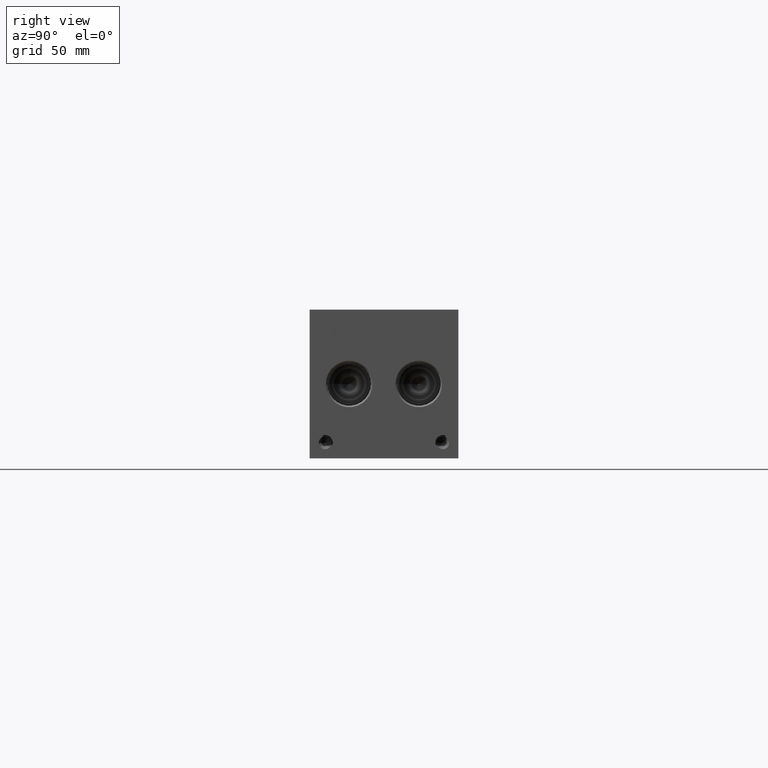
[diagram: clean part render]
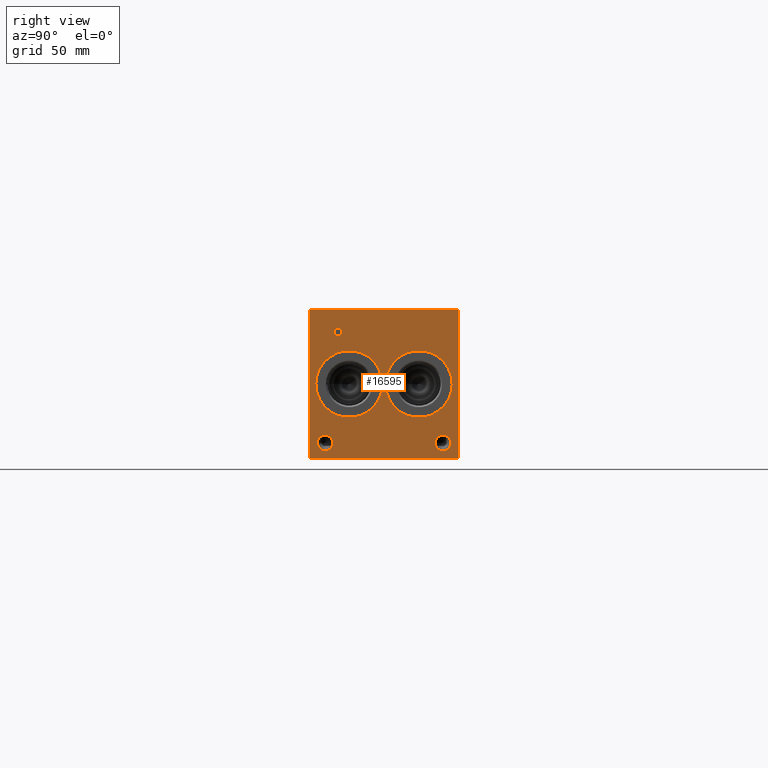
[diagram: same view with one face highlighted and labeled with its STEP entity id]
A machine part, right view. The second image highlights one B-rep face of the part: STEP entity #16595.
In plain terms, the highlighted planar face has unit normal (1, 0, 0).
Its self-contained STEP definition (entity closure, byte-faithful):
#278=CIRCLE('',#17334,17.0688);
#279=CIRCLE('',#17335,17.0688);
#280=CIRCLE('',#17336,17.0688);
#281=CIRCLE('',#17337,17.0688);
#282=CIRCLE('',#17338,3.9624);
#283=CIRCLE('',#17339,3.9624);
#284=CIRCLE('',#17340,3.9624);
#285=CIRCLE('',#17341,3.9624);
#846=FACE_BOUND('',#3001,.T.);
#847=FACE_BOUND('',#3002,.T.);
#848=FACE_BOUND('',#3003,.T.);
#849=FACE_BOUND('',#3004,.T.);
#850=FACE_BOUND('',#3005,.T.);
#851=FACE_BOUND('',#3006,.T.);
#1293=B_SPLINE_CURVE_WITH_KNOTS('',2,(#27310,#27311,#27312,#27313),
 .UNSPECIFIED.,.F.,.F.,(3,1,3),(0.,1.,2.),.UNSPECIFIED.);
#1295=B_SPLINE_CURVE_WITH_KNOTS('',2,(#27331,#27332,#27333,#27334),
 .UNSPECIFIED.,.F.,.F.,(3,1,3),(0.,1.,2.),.UNSPECIFIED.);
#1297=B_SPLINE_CURVE_WITH_KNOTS('',2,(#27380,#27381,#27382,#27383),
 .UNSPECIFIED.,.F.,.F.,(3,1,3),(0.,1.,2.),.UNSPECIFIED.);
#1299=B_SPLINE_CURVE_WITH_KNOTS('',2,(#27398,#27399,#27400,#27401),
 .UNSPECIFIED.,.F.,.F.,(3,1,3),(0.,1.,2.),.UNSPECIFIED.);
#2055=FACE_OUTER_BOUND('',#3000,.T.);
#3000=EDGE_LOOP('',(#13276,#13277,#13278,#13279));
#3001=EDGE_LOOP('',(#13280,#13281));
#3002=EDGE_LOOP('',(#13282,#13283));
#3003=EDGE_LOOP('',(#13284,#13285));
#3004=EDGE_LOOP('',(#13286,#13287));
#3005=EDGE_LOOP('',(#13288,#13289,#13290,#13291,#13292,#13293,#13294,#13295));
#3006=EDGE_LOOP('',(#13296,#13297,#13298,#13299,#13300,#13301,#13302,#13303,
#13304));
#3773=LINE('',#24294,#5224);
#4545=LINE('',#27343,#5996);
#4548=LINE('',#27349,#5999);
#4551=LINE('',#27355,#6002);
#4554=LINE('',#27361,#6005);
#4557=LINE('',#27367,#6008);
#4561=LINE('',#27409,#6012);
#4562=LINE('',#27411,#6013);
#4563=LINE('',#27412,#6014);
#4564=LINE('',#27431,#6015);
#4565=LINE('',#27433,#6016);
#4566=LINE('',#27435,#6017);
#4567=LINE('',#27437,#6018);
#4568=LINE('',#27439,#6019);
#4569=LINE('',#27441,#6020);
#4570=LINE('',#27443,#6021);
#4571=LINE('',#27444,#6022);
#5224=VECTOR('',#18689,10.);
#5996=VECTOR('',#20035,10.);
#5999=VECTOR('',#20040,10.);
#6002=VECTOR('',#20045,10.);
#6005=VECTOR('',#20050,10.);
#6008=VECTOR('',#20055,10.);
#6012=VECTOR('',#20063,10.);
#6013=VECTOR('',#20064,10.);
#6014=VECTOR('',#20065,10.);
#6015=VECTOR('',#20082,10.);
#6016=VECTOR('',#20083,10.);
#6017=VECTOR('',#20084,10.);
#6018=VECTOR('',#20085,10.);
#6019=VECTOR('',#20086,10.);
#6020=VECTOR('',#20087,10.);
#6021=VECTOR('',#20088,10.);
#6022=VECTOR('',#20089,10.);
#6686=VERTEX_POINT('',#24291);
#6687=VERTEX_POINT('',#24293);
#7327=VERTEX_POINT('',#27308);
#7328=VERTEX_POINT('',#27309);
#7331=VERTEX_POINT('',#27330);
#7333=VERTEX_POINT('',#27342);
#7335=VERTEX_POINT('',#27348);
#7337=VERTEX_POINT('',#27354);
#7339=VERTEX_POINT('',#27360);
#7341=VERTEX_POINT('',#27366);
#7343=VERTEX_POINT('',#27379);
#7345=VERTEX_POINT('',#27408);
#7346=VERTEX_POINT('',#27410);
#7347=VERTEX_POINT('',#27413);
#7348=VERTEX_POINT('',#27414);
#7349=VERTEX_POINT('',#27417);
#7350=VERTEX_POINT('',#27418);
#7351=VERTEX_POINT('',#27421);
#7352=VERTEX_POINT('',#27422);
#7353=VERTEX_POINT('',#27425);
#7354=VERTEX_POINT('',#27426);
#7355=VERTEX_POINT('',#27429);
#7356=VERTEX_POINT('',#27430);
#7357=VERTEX_POINT('',#27432);
#7358=VERTEX_POINT('',#27434);
#7359=VERTEX_POINT('',#27436);
#7360=VERTEX_POINT('',#27438);
#7361=VERTEX_POINT('',#27440);
#7362=VERTEX_POINT('',#27442);
#8492=EDGE_CURVE('',#6686,#6687,#3773,.T.);
#9443=EDGE_CURVE('',#7327,#7328,#1293,.T.);
#9447=EDGE_CURVE('',#7331,#7327,#1295,.T.);
#9450=EDGE_CURVE('',#7333,#7331,#4545,.T.);
#9453=EDGE_CURVE('',#7335,#7333,#4548,.T.);
#9456=EDGE_CURVE('',#7337,#7335,#4551,.T.);
#9459=EDGE_CURVE('',#7339,#7337,#4554,.T.);
#9462=EDGE_CURVE('',#7341,#7339,#4557,.T.);
#9465=EDGE_CURVE('',#7343,#7341,#1297,.T.);
#9468=EDGE_CURVE('',#7328,#7343,#1299,.T.);
#9470=EDGE_CURVE('',#6686,#7345,#4561,.T.);
#9471=EDGE_CURVE('',#7345,#7346,#4562,.T.);
#9472=EDGE_CURVE('',#6687,#7346,#4563,.T.);
#9473=EDGE_CURVE('',#7347,#7348,#278,.T.);
#9474=EDGE_CURVE('',#7348,#7347,#279,.T.);
#9475=EDGE_CURVE('',#7349,#7350,#280,.T.);
#9476=EDGE_CURVE('',#7350,#7349,#281,.T.);
#9477=EDGE_CURVE('',#7351,#7352,#282,.T.);
#9478=EDGE_CURVE('',#7352,#7351,#283,.T.);
#9479=EDGE_CURVE('',#7353,#7354,#284,.T.);
#9480=EDGE_CURVE('',#7354,#7353,#285,.T.);
#9481=EDGE_CURVE('',#7355,#7356,#4564,.T.);
#9482=EDGE_CURVE('',#7356,#7357,#4565,.T.);
#9483=EDGE_CURVE('',#7357,#7358,#4566,.T.);
#9484=EDGE_CURVE('',#7358,#7359,#4567,.T.);
#9485=EDGE_CURVE('',#7359,#7360,#4568,.T.);
#9486=EDGE_CURVE('',#7360,#7361,#4569,.T.);
#9487=EDGE_CURVE('',#7361,#7362,#4570,.T.);
#9488=EDGE_CURVE('',#7362,#7355,#4571,.T.);
#13276=ORIENTED_EDGE('',*,*,#9470,.T.);
#13277=ORIENTED_EDGE('',*,*,#9471,.T.);
#13278=ORIENTED_EDGE('',*,*,#9472,.F.);
#13279=ORIENTED_EDGE('',*,*,#8492,.F.);
#13280=ORIENTED_EDGE('',*,*,#9473,.T.);
#13281=ORIENTED_EDGE('',*,*,#9474,.T.);
#13282=ORIENTED_EDGE('',*,*,#9475,.T.);
#13283=ORIENTED_EDGE('',*,*,#9476,.T.);
#13284=ORIENTED_EDGE('',*,*,#9477,.T.);
#13285=ORIENTED_EDGE('',*,*,#9478,.T.);
#13286=ORIENTED_EDGE('',*,*,#9479,.T.);
#13287=ORIENTED_EDGE('',*,*,#9480,.T.);
#13288=ORIENTED_EDGE('',*,*,#9481,.T.);
#13289=ORIENTED_EDGE('',*,*,#9482,.T.);
#13290=ORIENTED_EDGE('',*,*,#9483,.T.);
#13291=ORIENTED_EDGE('',*,*,#9484,.T.);
#13292=ORIENTED_EDGE('',*,*,#9485,.T.);
#13293=ORIENTED_EDGE('',*,*,#9486,.T.);
#13294=ORIENTED_EDGE('',*,*,#9487,.T.);
#13295=ORIENTED_EDGE('',*,*,#9488,.T.);
#13296=ORIENTED_EDGE('',*,*,#9443,.T.);
#13297=ORIENTED_EDGE('',*,*,#9468,.T.);
#13298=ORIENTED_EDGE('',*,*,#9465,.T.);
#13299=ORIENTED_EDGE('',*,*,#9462,.T.);
#13300=ORIENTED_EDGE('',*,*,#9459,.T.);
#13301=ORIENTED_EDGE('',*,*,#9456,.T.);
#13302=ORIENTED_EDGE('',*,*,#9453,.T.);
#13303=ORIENTED_EDGE('',*,*,#9450,.T.);
#13304=ORIENTED_EDGE('',*,*,#9447,.T.);
#15409=PLANE('',#17333);
#16595=ADVANCED_FACE('',(#2055,#846,#847,#848,#849,#850,#851),#15409,.T.);
#17333=AXIS2_PLACEMENT_3D('',#27407,#20061,#20062);
#17334=AXIS2_PLACEMENT_3D('',#27415,#20066,#20067);
#17335=AXIS2_PLACEMENT_3D('',#27416,#20068,#20069);
#17336=AXIS2_PLACEMENT_3D('',#27419,#20070,#20071);
#17337=AXIS2_PLACEMENT_3D('',#27420,#20072,#20073);
#17338=AXIS2_PLACEMENT_3D('',#27423,#20074,#20075);
#17339=AXIS2_PLACEMENT_3D('',#27424,#20076,#20077);
#17340=AXIS2_PLACEMENT_3D('',#27427,#20078,#20079);
#17341=AXIS2_PLACEMENT_3D('',#27428,#20080,#20081);
#18689=DIRECTION('',(0.,0.,1.));
#20035=DIRECTION('',(0.,1.,0.));
#20040=DIRECTION('',(0.,0.,1.));
#20045=DIRECTION('',(0.,-1.,0.));
#20050=DIRECTION('',(0.,0.,-1.));
#20055=DIRECTION('',(0.,-1.,0.));
#20061=DIRECTION('center_axis',(1.,0.,0.));
#20062=DIRECTION('ref_axis',(0.,1.,0.));
#20063=DIRECTION('',(0.,1.,0.));
#20064=DIRECTION('',(0.,0.,1.));
#20065=DIRECTION('',(0.,1.,0.));
#20066=DIRECTION('center_axis',(-1.,0.,0.));
#20067=DIRECTION('ref_axis',(0.,1.,0.));
#20068=DIRECTION('center_axis',(-1.,0.,0.));
#20069=DIRECTION('ref_axis',(0.,1.,0.));
#20070=DIRECTION('center_axis',(-1.,0.,0.));
#20071=DIRECTION('ref_axis',(0.,1.,0.));
#20072=DIRECTION('center_axis',(-1.,0.,0.));
#20073=DIRECTION('ref_axis',(0.,1.,0.));
#20074=DIRECTION('center_axis',(-1.,0.,0.));
#20075=DIRECTION('ref_axis',(0.,1.,0.));
#20076=DIRECTION('center_axis',(-1.,0.,0.));
#20077=DIRECTION('ref_axis',(0.,1.,0.));
#20078=DIRECTION('center_axis',(-1.,0.,0.));
#20079=DIRECTION('ref_axis',(0.,1.,0.));
#20080=DIRECTION('center_axis',(-1.,0.,0.));
#20081=DIRECTION('ref_axis',(0.,1.,0.));
#20082=DIRECTION('',(0.,-1.,0.));
#20083=DIRECTION('',(0.,0.,1.));
#20084=DIRECTION('',(0.,-1.,0.));
#20085=DIRECTION('',(0.,0.,1.));
#20086=DIRECTION('',(0.,1.,0.));
#20087=DIRECTION('',(0.,0.,-1.));
#20088=DIRECTION('',(0.,-1.,0.));
#20089=DIRECTION('',(0.,0.,-1.));
#24291=CARTESIAN_POINT('',(358.775,0.,0.));
#24293=CARTESIAN_POINT('',(358.775,0.,76.2));
#24294=CARTESIAN_POINT('',(358.775,0.,0.));
#27308=CARTESIAN_POINT('',(358.775,15.8068172023594,66.2787681439707));
#27309=CARTESIAN_POINT('',(358.775,16.563259654532,64.760737372604));
#27310=CARTESIAN_POINT('Ctrl Pts',(358.775,15.8068172023594,66.2787681439707));
#27311=CARTESIAN_POINT('Ctrl Pts',(358.775,16.1618820268486,66.0369123939564));
#27312=CARTESIAN_POINT('Ctrl Pts',(358.775,16.563259654532,65.2907616758269));
#27313=CARTESIAN_POINT('Ctrl Pts',(358.775,16.563259654532,64.760737372604));
#27330=CARTESIAN_POINT('',(358.775,14.1447021543883,66.6749999046326));
#27331=CARTESIAN_POINT('Ctrl Pts',(358.775,14.1447021543883,66.6749999046326));
#27332=CARTESIAN_POINT('Ctrl Pts',(358.775,14.7107475267624,66.6749999046326));
#27333=CARTESIAN_POINT('Ctrl Pts',(358.775,15.503211048086,66.4897486918556));
#27334=CARTESIAN_POINT('Ctrl Pts',(358.775,15.8068172023594,66.2787681439707));
#27342=CARTESIAN_POINT('',(358.775,12.5494833776978,66.6749999046326));
#27343=CARTESIAN_POINT('',(358.775,6.27474168884889,66.6749999046326));
#27348=CARTESIAN_POINT('',(358.775,12.5494833776978,60.325));
#27349=CARTESIAN_POINT('',(358.775,12.5494833776978,30.1625));
#27354=CARTESIAN_POINT('',(358.775,13.3934055692373,60.325));
#27355=CARTESIAN_POINT('',(358.775,6.69670278461864,60.325));
#27360=CARTESIAN_POINT('',(358.775,13.3934055692373,62.6920988299279));
#27361=CARTESIAN_POINT('',(358.775,13.3934055692373,31.3460494149639));
#27366=CARTESIAN_POINT('',(358.775,14.1086810852372,62.6920988299279));
#27367=CARTESIAN_POINT('',(358.775,7.05434054261861,62.6920988299279));
#27379=CARTESIAN_POINT('',(358.775,16.0075060162011,63.3507698086904));
#27380=CARTESIAN_POINT('Ctrl Pts',(358.775,16.0075060162011,63.3507698086904));
#27381=CARTESIAN_POINT('Ctrl Pts',(358.775,15.6781705268198,63.0265801863307));
#27382=CARTESIAN_POINT('Ctrl Pts',(358.775,14.7879355320861,62.6920988299279));
#27383=CARTESIAN_POINT('Ctrl Pts',(358.775,14.1086810852372,62.6920988299279));
#27398=CARTESIAN_POINT('Ctrl Pts',(358.775,16.563259654532,64.760737372604));
#27399=CARTESIAN_POINT('Ctrl Pts',(358.775,16.563259654532,64.3490680108774));
#27400=CARTESIAN_POINT('Ctrl Pts',(358.775,16.2699452343018,63.6080631597695));
#27401=CARTESIAN_POINT('Ctrl Pts',(358.775,16.0075060162011,63.3507698086904));
#27407=CARTESIAN_POINT('Origin',(358.775,0.,0.));
#27408=CARTESIAN_POINT('',(358.775,76.2,0.));
#27409=CARTESIAN_POINT('',(358.775,0.,0.));
#27410=CARTESIAN_POINT('',(358.775,76.2,76.2));
#27411=CARTESIAN_POINT('',(358.775,76.2,0.));
#27412=CARTESIAN_POINT('',(358.775,0.,76.2));
#27413=CARTESIAN_POINT('',(358.775,37.3126,38.1));
#27414=CARTESIAN_POINT('',(358.775,3.175,38.1));
#27415=CARTESIAN_POINT('Origin',(358.775,20.2438,38.1));
#27416=CARTESIAN_POINT('Origin',(358.775,20.2438,38.1));
#27417=CARTESIAN_POINT('',(358.775,73.025,38.1));
#27418=CARTESIAN_POINT('',(358.775,38.8874,38.1));
#27419=CARTESIAN_POINT('Origin',(358.775,55.9562,38.1));
#27420=CARTESIAN_POINT('Origin',(358.775,55.9562,38.1));
#27421=CARTESIAN_POINT('',(358.775,72.2376,7.9248));
#27422=CARTESIAN_POINT('',(358.775,64.3128,7.9248));
#27423=CARTESIAN_POINT('Origin',(358.775,68.2752,7.9248));
#27424=CARTESIAN_POINT('Origin',(358.775,68.2752,7.9248));
#27425=CARTESIAN_POINT('',(358.775,11.8872,7.9248));
#27426=CARTESIAN_POINT('',(358.775,3.9624,7.9248));
#27427=CARTESIAN_POINT('Origin',(358.775,7.9248,7.9248));
#27428=CARTESIAN_POINT('Origin',(358.775,7.9248,7.9248));
#27429=CARTESIAN_POINT('',(358.775,69.644165271453,60.325));
#27430=CARTESIAN_POINT('',(358.775,68.8002430799135,60.325));
#27431=CARTESIAN_POINT('',(358.775,34.8220826357265,60.325));
#27432=CARTESIAN_POINT('',(358.775,68.8002430799135,65.9237033194816));
#27433=CARTESIAN_POINT('',(358.775,68.8002430799135,30.1625));
#27434=CARTESIAN_POINT('',(358.775,66.6698541329784,65.9237033194816));
#27435=CARTESIAN_POINT('',(358.775,34.4001215399567,65.9237033194816));
#27436=CARTESIAN_POINT('',(358.775,66.6698541329784,66.6749999046326));
#27437=CARTESIAN_POINT('',(358.775,66.6698541329784,32.9618516597408));
#27438=CARTESIAN_POINT('',(358.775,71.7745542183881,66.6749999046326));
#27439=CARTESIAN_POINT('',(358.775,33.3349270664892,66.6749999046326));
#27440=CARTESIAN_POINT('',(358.775,71.7745542183881,65.9237033194816));
#27441=CARTESIAN_POINT('',(358.775,71.7745542183881,33.3374999523163));
#27442=CARTESIAN_POINT('',(358.775,69.644165271453,65.9237033194816));
#27443=CARTESIAN_POINT('',(358.775,35.887277109194,65.9237033194816));
#27444=CARTESIAN_POINT('',(358.775,69.644165271453,32.9618516597408));